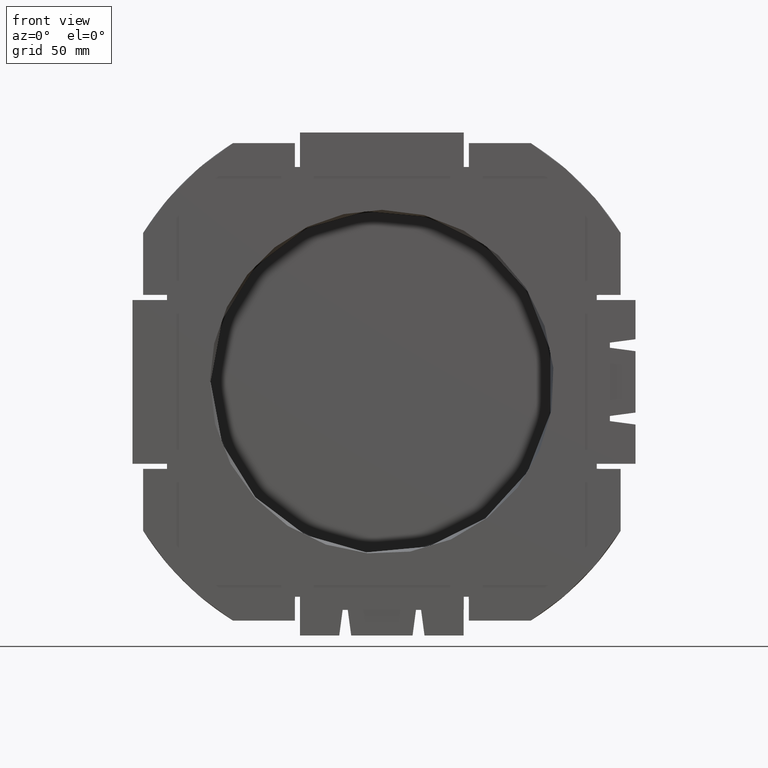
[diagram: clean part render]
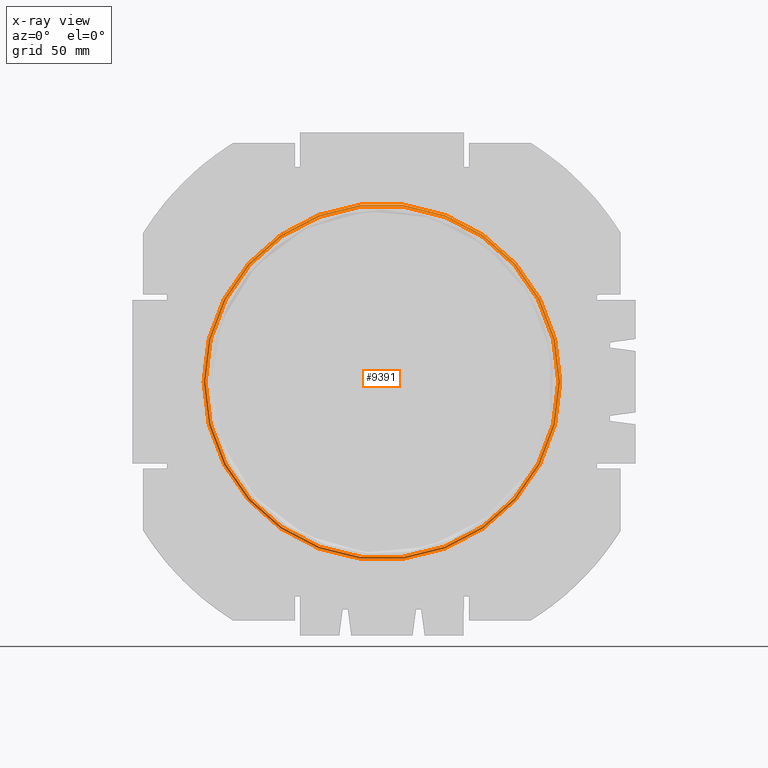
[diagram: x-ray — body ghosted, one internal face saturated and labeled with its STEP entity id]
A machine part, front view, then the same camera in x-ray: the body is ghosted and one INTERNAL B-rep face — a face not visible from any outside direction — is saturated and labeled: STEP entity #9391.
In plain terms, the highlighted conical surface has half-angle 50 deg.
Its self-contained STEP definition (entity closure, byte-faithful):
#55=CONICAL_SURFACE('',#10112,103.8,0.872664625997171);
#587=CIRCLE('',#9847,103.45);
#604=CIRCLE('',#9912,104.522578233335);
#1083=FACE_OUTER_BOUND('',#1585,.T.);
#1585=EDGE_LOOP('',(#7948,#7949,#7950,#7951));
#2442=LINE('',#18205,#3301);
#3301=VECTOR('',#12254,103.8);
#4057=VERTEX_POINT('',#16409);
#4099=VERTEX_POINT('',#17045);
#5083=EDGE_CURVE('',#4057,#4057,#587,.T.);
#5197=EDGE_CURVE('',#4099,#4099,#604,.T.);
#5471=EDGE_CURVE('',#4057,#4099,#2442,.T.);
#7948=ORIENTED_EDGE('',*,*,#5083,.T.);
#7949=ORIENTED_EDGE('',*,*,#5471,.T.);
#7950=ORIENTED_EDGE('',*,*,#5197,.T.);
#7951=ORIENTED_EDGE('',*,*,#5471,.F.);
#9391=ADVANCED_FACE('',(#1083),#55,.T.);
#9847=AXIS2_PLACEMENT_3D('',#16411,#11442,#11443);
#9912=AXIS2_PLACEMENT_3D('',#17046,#11641,#11642);
#10112=AXIS2_PLACEMENT_3D('',#18204,#12252,#12253);
#11442=DIRECTION('center_axis',(0.,1.,0.));
#11443=DIRECTION('ref_axis',(1.,0.,0.));
#11641=DIRECTION('center_axis',(0.,-1.,0.));
#11642=DIRECTION('ref_axis',(1.,0.,0.));
#12252=DIRECTION('center_axis',(0.,1.,0.));
#12253=DIRECTION('ref_axis',(1.,0.,0.));
#12254=DIRECTION('',(-0.766044443118982,0.642787609686534,9.38133875270278E-17));
#16409=CARTESIAN_POINT('',(-103.45,-80.6852572738409,1.26689711371794E-14));
#16411=CARTESIAN_POINT('Origin',(0.,-80.6852572738409,0.));
#17045=CARTESIAN_POINT('',(-104.522578233335,-79.7852572738409,-1.28003240872082E-14));
#17046=CARTESIAN_POINT('Origin',(0.,-79.7852572738409,0.));
#18204=CARTESIAN_POINT('Origin',(0.,-80.3915724029289,0.));
#18205=CARTESIAN_POINT('',(-103.8,-80.3915724029289,1.27118337751495E-14));